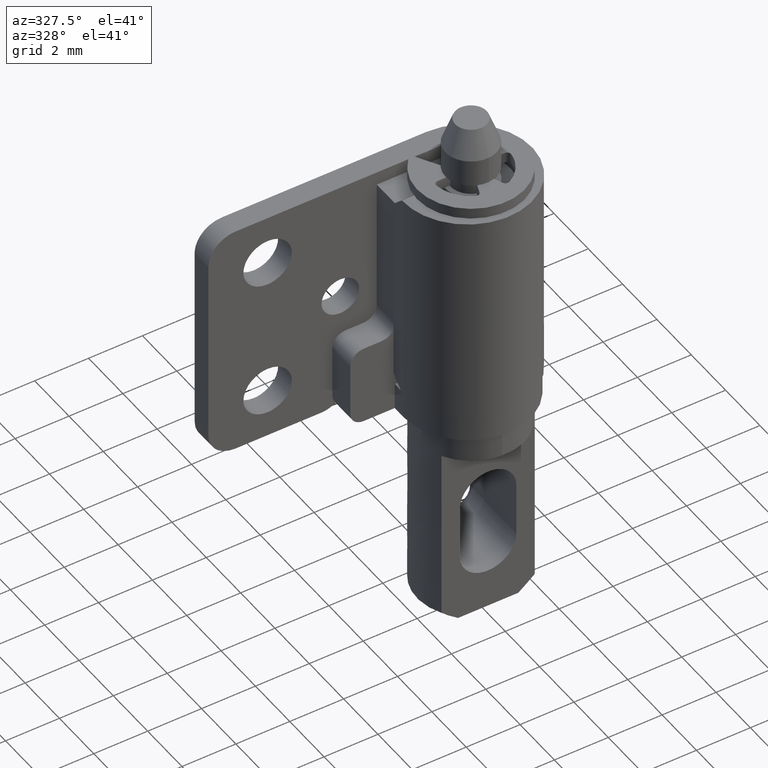
[diagram: clean part render]
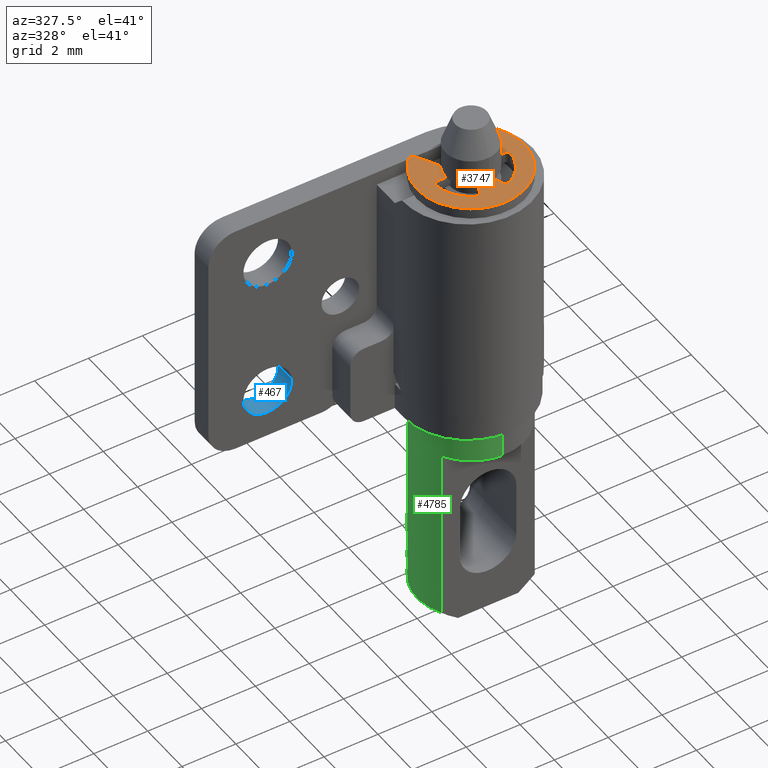
[diagram: same view with three faces highlighted in distinct colors, each labeled with its STEP entity id]
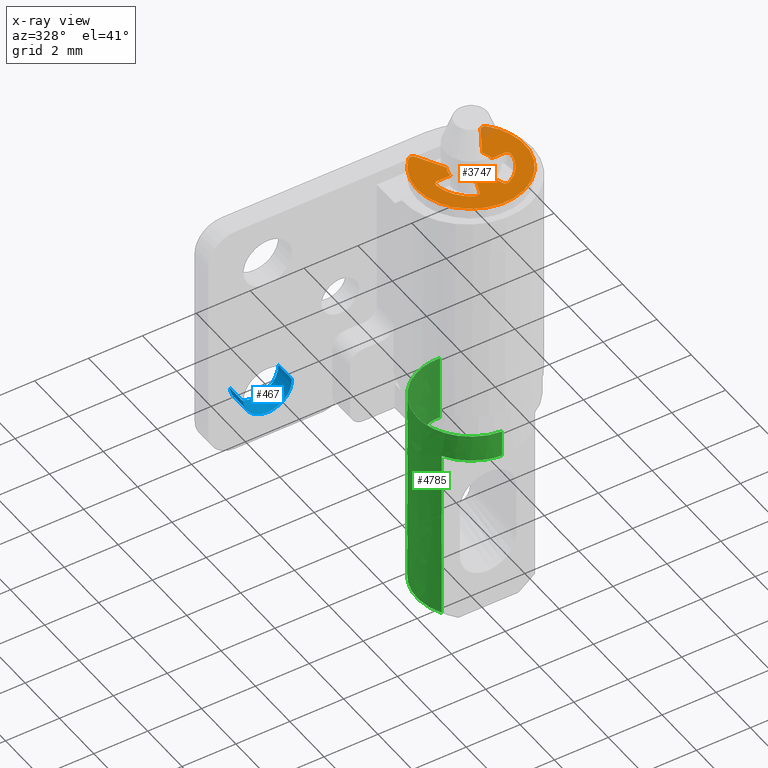
[diagram: x-ray of the same camera — body ghosted, the three highlighted faces saturated]
A machine part, auxiliary view with three faces highlighted in distinct colors.
The next image is the same camera in x-ray (body ghosted, the three faces saturated) — at least one of them is partly hidden behind the body in this view.
Their STEP definitions:

[orange] entity #3747 — the highlighted face is a freeform B-spline surface patch.
#3181=CARTESIAN_POINT('',(1.212330951790364,1.348148303648742,17.449999999999999));
#3182=VERTEX_POINT('',#3181);
#3188=CARTESIAN_POINT('',(1.451064492092410,1.376376343806188,17.449999999999999));
#3189=VERTEX_POINT('',#3188);
#3190=CARTESIAN_POINT('',(1.451064492092410,1.376376343806188,17.449999999999999));
#3191=CARTESIAN_POINT('',(1.440076014585856,1.387973529091939,17.450000000000010));
#3192=CARTESIAN_POINT('',(1.416683869878006,1.405810309640308,17.449999999999971));
#3193=CARTESIAN_POINT('',(1.368730980572497,1.423979063604677,17.450000000000031));
#3194=CARTESIAN_POINT('',(1.316700897225951,1.424645744408689,17.449999999999971));
#3195=CARTESIAN_POINT('',(1.256219339714265,1.401560849075707,17.450000000000021));
#3196=CARTESIAN_POINT('',(1.225351485501705,1.370835223705420,17.449999999999971));
#3197=CARTESIAN_POINT('',(1.212330951790364,1.348148303648742,17.449999999999999));
#3198=B_SPLINE_CURVE_WITH_KNOTS('',3,(#3190,#3191,#3192,#3193,#3194,#3195,#3196,#3197),.UNSPECIFIED.,.F.,.U.,(4,1,1,1,1,4),(0.000000065053776,0.047928601189015,0.087145310106098,0.152501182822709,0.200430249255266,0.278860340446040),.UNSPECIFIED.);
#3199=EDGE_CURVE('',#3189,#3182,#3198,.T.);
#3269=CARTESIAN_POINT('',(-1.451064492092310,1.376376343806042,17.449999999999999));
#3270=VERTEX_POINT('',#3269);
#3271=CARTESIAN_POINT('',(-1.451064492092310,1.376376343806042,17.449999999999999));
#3272=CARTESIAN_POINT('',(-1.522046137013473,1.301549995588683,17.450000000000038));
#3273=CARTESIAN_POINT('',(-1.660071863356793,1.131428898268059,17.449999999999921));
#3274=CARTESIAN_POINT('',(-1.807779447462006,0.872151483314480,17.450000000000099));
#3275=CARTESIAN_POINT('',(-1.922716487930998,0.577741336977017,17.449999999999839));
#3276=CARTESIAN_POINT('',(-1.995180773226926,0.256837143443216,17.450000000000230));
#3277=CARTESIAN_POINT('',(-2.007496212744952,-0.090357520048808,17.449999999999751));
#3278=CARTESIAN_POINT('',(-1.957537493965562,-0.464202748995445,17.450000000000220));
#3279=CARTESIAN_POINT('',(-1.838644848129679,-0.823645552632025,17.449999999999530));
#3280=CARTESIAN_POINT('',(-1.620343672876564,-1.197293584824139,17.450000000000522));
#3281=CARTESIAN_POINT('',(-1.349159400330162,-1.495433438029111,17.449999999999321));
#3282=CARTESIAN_POINT('',(-1.063198550029685,-1.703003623337727,17.450000000000038));
#3283=CARTESIAN_POINT('',(-0.750168126347550,-1.865116409745446,17.450000000000198));
#3284=CARTESIAN_POINT('',(-0.441453281232786,-1.962264716586985,17.449999999999878));
#3285=CARTESIAN_POINT('',(-0.097421700572246,-2.004721278102037,17.450000000000021));
#3286=CARTESIAN_POINT('',(0.188514587240929,-1.998217840306377,17.449999999999999));
#3287=CARTESIAN_POINT('',(0.470295166581990,-1.950320828831654,17.449999999999999));
#3288=CARTESIAN_POINT('',(0.719733686755420,-1.871823539655544,17.449999999999982));
#3289=CARTESIAN_POINT('',(0.957036953926355,-1.762334017535498,17.450000000000081));
#3290=CARTESIAN_POINT('',(1.194091960529090,-1.613818253410757,17.449999999999690));
#3291=CARTESIAN_POINT('',(1.401858094306371,-1.435289078391304,17.450000000000401));
#3292=CARTESIAN_POINT('',(1.599167714100959,-1.212324546987187,17.450000000000848));
#3293=CARTESIAN_POINT('',(1.763545977774109,-0.963277127498213,17.449999999999470));
#3294=CARTESIAN_POINT('',(1.893628905062764,-0.668022652771922,17.450000000000269));
#3295=CARTESIAN_POINT('',(1.970342083164480,-0.379980380282047,17.449999999999989));
#3296=CARTESIAN_POINT('',(2.004338507340568,-0.096186296834941,17.449999999999982));
#3297=CARTESIAN_POINT('',(1.997444666284665,0.220069844924971,17.449999999999971));
#3298=CARTESIAN_POINT('',(1.939834302730225,0.519320809507830,17.450000000000149));
#3299=CARTESIAN_POINT('',(1.841180675921866,0.793870112983513,17.449999999999761));
#3300=CARTESIAN_POINT('',(1.698646136168476,1.076047871860290,17.450000000000351));
#3301=CARTESIAN_POINT('',(1.555473523502966,1.266349790627703,17.449999999999900));
#3302=CARTESIAN_POINT('',(1.451064492092410,1.376376343806188,17.449999999999999));
#3303=B_SPLINE_CURVE_WITH_KNOTS('',3,(#3271,#3272,#3273,#3274,#3275,#3276,#3277,#3278,#3279,#3280,#3281,#3282,#3283,#3284,#3285,#3286,#3287,#3288,#3289,#3290,#3291,#3292,#3293,#3294,#3295,#3296,#3297,#3298,#3299,#3300,#3301,#3302),.UNSPECIFIED.,.F.,.U.,(4,1,1,1,1,1,1,1,1,1,1,1,1,1,1,1,1,1,1,1,1,1,1,1,1,1,1,1,1,4),(0.000000050985452,0.309413772538221,0.655252304163838,0.891868103643823,1.255901517056193,1.638137361888803,1.929362548048371,2.384400183111099,2.766630332795879,3.221663706624588,3.585687251890569,3.822315624208865,4.277353517664634,4.550376568086528,4.859805633774358,5.132828299039727,5.405851076440694,5.642477920777859,5.915493148931501,6.243106503253237,6.461532414230283,6.807355965644268,7.134985309013650,7.426214521909680,7.699238055508743,7.990463769543777,8.372694848878712,8.609322417356243,8.864139370618620,9.319172848517413),.UNSPECIFIED.);
#3304=EDGE_CURVE('',#3270,#3189,#3303,.T.);
#3342=CARTESIAN_POINT('',(-1.212330951790364,1.348148303648684,17.449999999999999));
#3343=VERTEX_POINT('',#3342);
#3344=CARTESIAN_POINT('',(-1.212330951790364,1.348148303648684,17.449999999999999));
#3345=CARTESIAN_POINT('',(-1.225357998960994,1.370831495464770,17.449999999999999));
#3346=CARTESIAN_POINT('',(-1.254085671713346,1.399446532416095,17.450000000000010));
#3347=CARTESIAN_POINT('',(-1.301454297067903,1.419087033525763,17.450000000000010));
#3348=CARTESIAN_POINT('',(-1.341951075622627,1.425077942138687,17.450000000000021));
#3349=CARTESIAN_POINT('',(-1.395928711209951,1.418082790829322,17.449999999999928));
#3350=CARTESIAN_POINT('',(-1.433111870728118,1.395401085094020,17.450000000000120));
#3351=CARTESIAN_POINT('',(-1.451064492092310,1.376376343806042,17.449999999999999));
#3352=B_SPLINE_CURVE_WITH_KNOTS('',3,(#3344,#3345,#3346,#3347,#3348,#3349,#3350,#3351),.UNSPECIFIED.,.F.,.U.,(4,1,1,1,1,4),(0.000000065053645,0.078430913774434,0.117649862217741,0.152501182822664,0.200430249255227,0.278860340446034),.UNSPECIFIED.);
#3353=EDGE_CURVE('',#3343,#3270,#3352,.T.);
#3555=CARTESIAN_POINT('',(-2.199796393704201,-2.170986096395479,17.449999999999999));
#3556=CARTESIAN_POINT('',(2.199796522551249,-2.170986096395479,17.449999999999999));
#3557=CARTESIAN_POINT('',(-2.199796393704201,1.594131394019769,17.449999999999999));
#3558=CARTESIAN_POINT('',(2.199796522551249,1.594131394019769,17.449999999999999));
#3559=B_SPLINE_SURFACE_WITH_KNOTS('',1,1,((#3555,#3557),(#3556,#3558)),.UNSPECIFIED.,.F.,.F.,.U.,(2,2),(2,2),(0.0,4.399592916255450),(0.0,3.765117490415248),.UNSPECIFIED.);
#3560=ORIENTED_EDGE('',*,*,#3353,.T.);
#3561=ORIENTED_EDGE('',*,*,#3304,.T.);
#3562=ORIENTED_EDGE('',*,*,#3199,.T.);
#3563=CARTESIAN_POINT('',(0.658638394191508,0.389127826937154,17.449999999999999));
#3564=VERTEX_POINT('',#3563);
#3565=CARTESIAN_POINT('',(0.658638394191508,0.389127826937154,17.449999999999999));
#3566=CARTESIAN_POINT('',(1.212330951790364,1.348148303648742,17.449999999999999));
#3567=QUASI_UNIFORM_CURVE('',1,(#3565,#3566),.UNSPECIFIED.,.F.,.U.);
#3568=EDGE_CURVE('',#3564,#3182,#3567,.T.);
#3569=ORIENTED_EDGE('',*,*,#3568,.F.);
#3570=CARTESIAN_POINT('',(0.765000000000000,0.0,17.449999999999999));
#3571=VERTEX_POINT('',#3570);
#3572=CARTESIAN_POINT('',(0.765000000000000,0.0,17.449999999999999));
#3573=CARTESIAN_POINT('',(0.765000000000000,0.209099999565535,17.449999999999999));
#3574=CARTESIAN_POINT('',(0.658638394191508,0.389127826937154,17.449999999999999));
#3582=(BOUNDED_CURVE()B_SPLINE_CURVE(2,(#3572,#3573,#3574),.UNSPECIFIED.,.F.,.U.)CURVE()GEOMETRIC_REPRESENTATION_ITEM()QUASI_UNIFORM_CURVE()RATIONAL_B_SPLINE_CURVE((1.0,0.964615265576222,1.0))REPRESENTATION_ITEM(''));
#3583=EDGE_CURVE('',#3571,#3564,#3582,.T.);
#3584=ORIENTED_EDGE('',*,*,#3583,.F.);
#3585=CARTESIAN_POINT('',(1.240967364599072,-3.411160E-014,17.449999999999999));
#3586=VERTEX_POINT('',#3585);
#3587=CARTESIAN_POINT('',(1.240967364599072,-3.411160E-014,17.449999999999999));
#3588=CARTESIAN_POINT('',(0.765000000000000,0.0,17.449999999999999));
#3589=QUASI_UNIFORM_CURVE('',1,(#3587,#3588),.UNSPECIFIED.,.F.,.U.);
#3590=EDGE_CURVE('',#3586,#3571,#3589,.T.);
#3591=ORIENTED_EDGE('',*,*,#3590,.F.);
#3592=CARTESIAN_POINT('',(1.389883448350970,-0.168000000000046,17.449999999999999));
#3593=VERTEX_POINT('',#3592);
#3594=CARTESIAN_POINT('',(1.389883448350970,-0.168000000000046,17.449999999999999));
#3595=CARTESIAN_POINT('',(1.391631797441161,-0.153573358312229,17.450000000000010));
#3596=CARTESIAN_POINT('',(1.390859461479480,-0.122871693956319,17.449999999999950));
#3597=CARTESIAN_POINT('',(1.377461882757580,-0.083623312750478,17.450000000000060));
#3598=CARTESIAN_POINT('',(1.350736715367259,-0.043948285433734,17.449999999999928));
#3599=CARTESIAN_POINT('',(1.307003419874137,-0.009970251042560,17.450000000000060));
#3600=CARTESIAN_POINT('',(1.263431761933882,0.000031570632863,17.449999999999999));
#3601=CARTESIAN_POINT('',(1.240967364599072,-3.411160E-014,17.449999999999999));
#3602=B_SPLINE_CURVE_WITH_KNOTS('',3,(#3594,#3595,#3596,#3597,#3598,#3599,#3600,#3601),.UNSPECIFIED.,.F.,.U.,(4,1,1,1,1,4),(0.000000053282574,0.043597552984356,0.091166314021057,0.122878169408883,0.186288909565575,0.253670308778183),.UNSPECIFIED.);
#3603=EDGE_CURVE('',#3593,#3586,#3602,.T.);
#3604=ORIENTED_EDGE('',*,*,#3603,.F.);
#3605=CARTESIAN_POINT('',(0.633236496503034,-1.248603836089160,17.449999999999999));
#3606=VERTEX_POINT('',#3605);
#3607=CARTESIAN_POINT('',(0.633236496503034,-1.248603836089159,17.449999999999999));
#3608=CARTESIAN_POINT('',(1.300150041824686,-0.910374860089326,17.449999999999999));
#3609=CARTESIAN_POINT('',(1.389883448350971,-0.168000000000046,17.449999999999999));
#3617=(BOUNDED_CURVE()B_SPLINE_CURVE(2,(#3607,#3608,#3609),.UNSPECIFIED.,.F.,.U.)CURVE()GEOMETRIC_REPRESENTATION_ITEM()QUASI_UNIFORM_CURVE()RATIONAL_B_SPLINE_CURVE((1.0,0.882061935247949,1.0))REPRESENTATION_ITEM(''));
#3618=EDGE_CURVE('',#3606,#3593,#3617,.T.);
#3619=ORIENTED_EDGE('',*,*,#3618,.F.);
#3620=CARTESIAN_POINT('',(0.424435835902699,-1.166127875149896,17.449999999999999));
#3621=VERTEX_POINT('',#3620);
#3622=CARTESIAN_POINT('',(0.424435835902699,-1.166127875149896,17.449999999999999));
#3623=CARTESIAN_POINT('',(0.431196401047926,-1.184757670969150,17.449999999999999));
#3624=CARTESIAN_POINT('',(0.452951282519037,-1.220419848056633,17.449999999999989));
#3625=CARTESIAN_POINT('',(0.498210396908111,-1.252329538666330,17.450000000000010));
#3626=CARTESIAN_POINT('',(0.545744346510345,-1.265486174095402,17.449999999999999));
#3627=CARTESIAN_POINT('',(0.589800468939707,-1.265181421331287,17.449999999999971));
#3628=CARTESIAN_POINT('',(0.619099923364617,-1.255781893481892,17.450000000000038));
#3629=CARTESIAN_POINT('',(0.633236496503034,-1.248603836089160,17.449999999999999));
#3630=B_SPLINE_CURVE_WITH_KNOTS('',3,(#3622,#3623,#3624,#3625,#3626,#3627,#3628,#3629),.UNSPECIFIED.,.F.,.U.,(4,1,1,1,1,4),(0.000000053282629,0.059453724634352,0.122878169408893,0.162504235342812,0.206108143555292,0.253670308778178),.UNSPECIFIED.);
#3631=EDGE_CURVE('',#3621,#3606,#3630,.T.);
#3632=ORIENTED_EDGE('',*,*,#3631,.F.);
#3633=CARTESIAN_POINT('',(0.261645409644129,-0.718864854901223,17.449999999999999));
#3634=VERTEX_POINT('',#3633);
#3635=CARTESIAN_POINT('',(0.261645409644129,-0.718864854901223,17.449999999999999));
#3636=CARTESIAN_POINT('',(0.424435835902699,-1.166127875149896,17.449999999999999));
#3637=QUASI_UNIFORM_CURVE('',1,(#3635,#3636),.UNSPECIFIED.,.F.,.U.);
#3638=EDGE_CURVE('',#3634,#3621,#3637,.T.);
#3639=ORIENTED_EDGE('',*,*,#3638,.F.);
#3640=CARTESIAN_POINT('',(-0.006675888679132,-0.764970870367183,17.449999999999999));
#3641=VERTEX_POINT('',#3640);
#3642=CARTESIAN_POINT('',(-0.006675888679132,-0.764970870367195,17.450000000000003));
#3643=CARTESIAN_POINT('',(0.131653424748923,-0.766178068096258,17.450000000000003));
#3644=CARTESIAN_POINT('',(0.261645409644129,-0.718864854901223,17.449999999999999));
#3652=(BOUNDED_CURVE()B_SPLINE_CURVE(2,(#3642,#3643,#3644),.UNSPECIFIED.,.F.,.U.)B_SPLINE_CURVE_WITH_KNOTS((3,3),(0.487626938908110,1.0),.UNSPECIFIED.)CURVE()GEOMETRIC_REPRESENTATION_ITEM()RATIONAL_B_SPLINE_CURVE((0.969864775624841,0.969100123505648,1.0))REPRESENTATION_ITEM(''));
#3653=EDGE_CURVE('',#3641,#3634,#3652,.T.);
#3654=ORIENTED_EDGE('',*,*,#3653,.F.);
#3655=CARTESIAN_POINT('',(-0.261645409644137,-0.718864854901220,17.449999999999999));
#3656=VERTEX_POINT('',#3655);
#3657=CARTESIAN_POINT('',(-0.261645409644136,-0.718864854901220,17.449999999999999));
#3658=CARTESIAN_POINT('',(-0.138121878992126,-0.763823743290021,17.450000000000003));
#3659=CARTESIAN_POINT('',(-0.006675888679132,-0.764970870367195,17.450000000000003));
#3667=(BOUNDED_CURVE()B_SPLINE_CURVE(2,(#3657,#3658,#3659),.UNSPECIFIED.,.F.,.U.)B_SPLINE_CURVE_WITH_KNOTS((3,3),(0.0,0.487626938908110),.UNSPECIFIED.)CURVE()GEOMETRIC_REPRESENTATION_ITEM()RATIONAL_B_SPLINE_CURVE((1.0,0.970592497280263,0.969864775624841))REPRESENTATION_ITEM(''));
#3668=EDGE_CURVE('',#3656,#3641,#3667,.T.);
#3669=ORIENTED_EDGE('',*,*,#3668,.F.);
#3670=CARTESIAN_POINT('',(-0.424435835902636,-1.166127875149890,17.449999999999999));
#3671=VERTEX_POINT('',#3670);
#3672=CARTESIAN_POINT('',(-0.424435835902636,-1.166127875149890,17.449999999999999));
#3673=CARTESIAN_POINT('',(-0.261645409644137,-0.718864854901220,17.449999999999999));
#3674=QUASI_UNIFORM_CURVE('',1,(#3672,#3673),.UNSPECIFIED.,.F.,.U.);
#3675=EDGE_CURVE('',#3671,#3656,#3674,.T.);
#3676=ORIENTED_EDGE('',*,*,#3675,.F.);
#3677=CARTESIAN_POINT('',(-0.633236496503001,-1.248603836089174,17.449999999999999));
#3678=VERTEX_POINT('',#3677);
#3679=CARTESIAN_POINT('',(-0.633236496503001,-1.248603836089174,17.449999999999999));
#3680=CARTESIAN_POINT('',(-0.609685488505143,-1.260630613189447,17.450000000000010));
#3681=CARTESIAN_POINT('',(-0.572191296190642,-1.268311763008696,17.449999999999971));
#3682=CARTESIAN_POINT('',(-0.518450418293170,-1.259366914210877,17.450000000000038));
#3683=CARTESIAN_POINT('',(-0.479676487588918,-1.241009788319723,17.449999999999989));
#3684=CARTESIAN_POINT('',(-0.444819939508049,-1.207912467802605,17.450000000000010));
#3685=CARTESIAN_POINT('',(-0.429850090945664,-1.181029688263391,17.450000000000010));
#3686=CARTESIAN_POINT('',(-0.424435835902636,-1.166127875149890,17.449999999999999));
#3687=B_SPLINE_CURVE_WITH_KNOTS('',3,(#3679,#3680,#3681,#3682,#3683,#3684,#3685,#3686),.UNSPECIFIED.,.F.,.U.,(4,1,1,1,1,4),(0.000000053282478,0.079273593675409,0.110986469966972,0.162504235342799,0.206108143555291,0.253670308778186),.UNSPECIFIED.);
#3688=EDGE_CURVE('',#3678,#3671,#3687,.T.);
#3689=ORIENTED_EDGE('',*,*,#3688,.F.);
#3690=CARTESIAN_POINT('',(-1.389883448350990,-0.168000000000007,17.449999999999999));
#3691=VERTEX_POINT('',#3690);
#3692=CARTESIAN_POINT('',(-1.389883448350975,-0.168000000000005,17.449999999999999));
#3693=CARTESIAN_POINT('',(-1.300150041824706,-0.910374860089336,17.450000000000003));
#3694=CARTESIAN_POINT('',(-0.633236496503002,-1.248603836089175,17.449999999999999));
#3702=(BOUNDED_CURVE()B_SPLINE_CURVE(2,(#3692,#3693,#3694),.UNSPECIFIED.,.F.,.U.)CURVE()GEOMETRIC_REPRESENTATION_ITEM()QUASI_UNIFORM_CURVE()RATIONAL_B_SPLINE_CURVE((1.0,0.882061935247936,1.0))REPRESENTATION_ITEM(''));
#3703=EDGE_CURVE('',#3691,#3678,#3702,.T.);
#3704=ORIENTED_EDGE('',*,*,#3703,.F.);
#3705=CARTESIAN_POINT('',(-1.240967364599100,0.0,17.449999999999999));
#3706=VERTEX_POINT('',#3705);
#3707=CARTESIAN_POINT('',(-1.240967364599100,0.0,17.449999999999999));
#3708=CARTESIAN_POINT('',(-1.267409923550458,0.000074045855941,17.449999999999989));
#3709=CARTESIAN_POINT('',(-1.308286349042970,-0.011116078452230,17.450000000000038));
#3710=CARTESIAN_POINT('',(-1.351059639021665,-0.045288249566572,17.449999999999950));
#3711=CARTESIAN_POINT('',(-1.377378342745237,-0.082176115168794,17.450000000000060));
#3712=CARTESIAN_POINT('',(-1.391111801216193,-0.124230024341015,17.449999999999999));
#3713=CARTESIAN_POINT('',(-1.391471277426256,-0.154884494982510,17.449999999999999));
#3714=CARTESIAN_POINT('',(-1.389883448350990,-0.168000000000007,17.449999999999999));
#3715=B_SPLINE_CURVE_WITH_KNOTS('',3,(#3707,#3708,#3709,#3710,#3711,#3712,#3713,#3714),.UNSPECIFIED.,.F.,.U.,(4,1,1,1,1,4),(0.000000053282651,0.079273593675493,0.122878169408903,0.162504235342818,0.214034598407028,0.253670308778173),.UNSPECIFIED.);
#3716=EDGE_CURVE('',#3706,#3691,#3715,.T.);
#3717=ORIENTED_EDGE('',*,*,#3716,.F.);
#3718=CARTESIAN_POINT('',(-0.765000000000000,9.368239E-017,17.449999999999999));
#3719=VERTEX_POINT('',#3718);
#3720=CARTESIAN_POINT('',(-0.765000000000000,9.368239E-017,17.449999999999999));
#3721=CARTESIAN_POINT('',(-1.240967364599100,0.0,17.449999999999999));
#3722=QUASI_UNIFORM_CURVE('',1,(#3720,#3721),.UNSPECIFIED.,.F.,.U.);
#3723=EDGE_CURVE('',#3719,#3706,#3722,.T.);
#3724=ORIENTED_EDGE('',*,*,#3723,.F.);
#3725=CARTESIAN_POINT('',(-0.658638394191504,0.389127826937161,17.449999999999999));
#3726=VERTEX_POINT('',#3725);
#3727=CARTESIAN_POINT('',(-0.658638394191504,0.389127826937161,17.449999999999999));
#3728=CARTESIAN_POINT('',(-0.765000000000000,0.209099999565539,17.449999999999996));
#3729=CARTESIAN_POINT('',(-0.765000000000000,0.0,17.449999999999999));
#3737=(BOUNDED_CURVE()B_SPLINE_CURVE(2,(#3727,#3728,#3729),.UNSPECIFIED.,.F.,.U.)CURVE()GEOMETRIC_REPRESENTATION_ITEM()QUASI_UNIFORM_CURVE()RATIONAL_B_SPLINE_CURVE((1.0,0.964615265576220,1.0))REPRESENTATION_ITEM(''));
#3738=EDGE_CURVE('',#3726,#3719,#3737,.T.);
#3739=ORIENTED_EDGE('',*,*,#3738,.F.);
#3740=CARTESIAN_POINT('',(-1.212330951790364,1.348148303648684,17.449999999999999));
#3741=CARTESIAN_POINT('',(-0.658638394191504,0.389127826937161,17.449999999999999));
#3742=QUASI_UNIFORM_CURVE('',1,(#3740,#3741),.UNSPECIFIED.,.F.,.U.);
#3743=EDGE_CURVE('',#3343,#3726,#3742,.T.);
#3744=ORIENTED_EDGE('',*,*,#3743,.F.);
#3745=EDGE_LOOP('',(#3560,#3561,#3562,#3569,#3584,#3591,#3604,#3619,#3632,#3639,#3654,#3669,#3676,#3689,#3704,#3717,#3724,#3739,#3744));
#3746=FACE_OUTER_BOUND('',#3745,.T.);
#3747=ADVANCED_FACE('',(#3746),#3559,.T.);

[blue] entity #467 — the highlighted face is a freeform B-spline surface patch.
#369=CARTESIAN_POINT('',(-5.501678681420320,1.780000000000024,9.904943685580902));
#370=CARTESIAN_POINT('',(-5.446734995838949,1.780000000000025,9.006622367001222));
#371=CARTESIAN_POINT('',(-6.345056314418629,1.780000000000024,8.951678681419852));
#372=CARTESIAN_POINT('',(-7.243377632998310,1.780000000000025,8.896734995838481));
#373=CARTESIAN_POINT('',(-7.298321318579681,1.780000000000024,9.795056314418160));
#374=CARTESIAN_POINT('',(-5.501678681420320,2.620500000000046,9.904943685580902));
#375=CARTESIAN_POINT('',(-5.446734995838949,2.620500000000047,9.006622367001222));
#376=CARTESIAN_POINT('',(-6.345056314418629,2.620500000000046,8.951678681419852));
#377=CARTESIAN_POINT('',(-7.243377632998310,2.620500000000047,8.896734995838481));
#378=CARTESIAN_POINT('',(-7.298321318579681,2.620500000000046,9.795056314418160));
#386=(BOUNDED_SURFACE()B_SPLINE_SURFACE(2,1,((#369,#374),(#370,#375),(#371,#376),(#372,#377),(#373,#378)),.UNSPECIFIED.,.F.,.F.,.U.)B_SPLINE_SURFACE_WITH_KNOTS((3,2,3),(2,2),(3.141592653589793,4.712388980384690,6.283185307179586),(0.0,1.0),.UNSPECIFIED.)GEOMETRIC_REPRESENTATION_ITEM()RATIONAL_B_SPLINE_SURFACE(((1.0,1.0),(0.707106781186548,0.707106781186548),(1.0,1.0),(0.707106781186548,0.707106781186548),(1.0,1.0)))REPRESENTATION_ITEM('')SURFACE());
#387=CARTESIAN_POINT('',(-5.501678681422691,1.800000000000025,9.904943685619653));
#388=VERTEX_POINT('',#387);
#389=CARTESIAN_POINT('',(-6.400000000000000,1.800000000000025,8.949999999999532));
#390=VERTEX_POINT('',#389);
#391=CARTESIAN_POINT('',(-5.501678681422691,1.800000000000024,9.904943685619651));
#392=CARTESIAN_POINT('',(-5.500000000000002,1.800000000000025,9.877497486987689));
#393=CARTESIAN_POINT('',(-5.500000000000001,1.800000000000025,9.849999999999531));
#394=CARTESIAN_POINT('',(-5.500000000000002,1.800000000000025,8.949999999999532));
#395=CARTESIAN_POINT('',(-6.400000000000000,1.800000000000025,8.949999999999532));
#403=(BOUNDED_CURVE()B_SPLINE_CURVE(2,(#391,#392,#393,#394,#395),.UNSPECIFIED.,.F.,.U.)B_SPLINE_CURVE_WITH_KNOTS((3,2,3),(0.239332962234525,0.250000000000000,0.500000000000000),.UNSPECIFIED.)CURVE()GEOMETRIC_REPRESENTATION_ITEM()RATIONAL_B_SPLINE_CURVE((0.976072041657250,0.987502787894662,1.0,0.707106781186547,1.0))REPRESENTATION_ITEM(''));
#404=EDGE_CURVE('',#388,#390,#403,.T.);
#405=ORIENTED_EDGE('',*,*,#404,.F.);
#406=CARTESIAN_POINT('',(-5.501678681422691,2.600000000000045,9.904943685619653));
#407=VERTEX_POINT('',#406);
#408=CARTESIAN_POINT('',(-5.501678681422691,1.800000000000025,9.904943685619653));
#409=CARTESIAN_POINT('',(-5.501678681422691,2.600000000000045,9.904943685619653));
#410=QUASI_UNIFORM_CURVE('',1,(#408,#409),.UNSPECIFIED.,.F.,.U.);
#411=EDGE_CURVE('',#388,#407,#410,.T.);
#412=ORIENTED_EDGE('',*,*,#411,.T.);
#413=CARTESIAN_POINT('',(-6.400000000000000,2.600000000000045,8.949999999999532));
#414=VERTEX_POINT('',#413);
#415=CARTESIAN_POINT('',(-5.501678681422692,2.600000000000045,9.904943685619651));
#416=CARTESIAN_POINT('',(-5.500000000000002,2.600000000000045,9.877497486987689));
#417=CARTESIAN_POINT('',(-5.500000000000001,2.600000000000045,9.849999999999531));
#418=CARTESIAN_POINT('',(-5.500000000000002,2.600000000000045,8.949999999999532));
#419=CARTESIAN_POINT('',(-6.400000000000000,2.600000000000045,8.949999999999532));
#427=(BOUNDED_CURVE()B_SPLINE_CURVE(2,(#415,#416,#417,#418,#419),.UNSPECIFIED.,.F.,.U.)B_SPLINE_CURVE_WITH_KNOTS((3,2,3),(0.239332962234525,0.250000000000000,0.500000000000000),.UNSPECIFIED.)CURVE()GEOMETRIC_REPRESENTATION_ITEM()RATIONAL_B_SPLINE_CURVE((0.976072041657250,0.987502787894662,1.0,0.707106781186547,1.0))REPRESENTATION_ITEM(''));
#428=EDGE_CURVE('',#407,#414,#427,.T.);
#429=ORIENTED_EDGE('',*,*,#428,.T.);
#430=CARTESIAN_POINT('',(-7.298321318577310,2.600000000000045,9.795056314379407));
#431=VERTEX_POINT('',#430);
#432=CARTESIAN_POINT('',(-6.400000000000000,2.600000000000045,8.949999999999532));
#433=CARTESIAN_POINT('',(-7.246635460178531,2.600000000000046,8.949999999999532));
#434=CARTESIAN_POINT('',(-7.298321318577311,2.600000000000045,9.795056314379405));
#442=(BOUNDED_CURVE()B_SPLINE_CURVE(2,(#432,#433,#434),.UNSPECIFIED.,.F.,.U.)B_SPLINE_CURVE_WITH_KNOTS((3,3),(0.500000000000000,0.739332962234524),.UNSPECIFIED.)CURVE()GEOMETRIC_REPRESENTATION_ITEM()RATIONAL_B_SPLINE_CURVE((1.0,0.719603993291887,0.976072041657248))REPRESENTATION_ITEM(''));
#443=EDGE_CURVE('',#414,#431,#442,.T.);
#444=ORIENTED_EDGE('',*,*,#443,.T.);
#445=CARTESIAN_POINT('',(-7.298321318577310,1.800000000000025,9.795056314379409));
#446=VERTEX_POINT('',#445);
#447=CARTESIAN_POINT('',(-7.298321318577310,1.800000000000025,9.795056314379409));
#448=CARTESIAN_POINT('',(-7.298321318577310,2.600000000000045,9.795056314379407));
#449=QUASI_UNIFORM_CURVE('',1,(#447,#448),.UNSPECIFIED.,.F.,.U.);
#450=EDGE_CURVE('',#446,#431,#449,.T.);
#451=ORIENTED_EDGE('',*,*,#450,.F.);
#452=CARTESIAN_POINT('',(-6.400000000000000,1.800000000000025,8.949999999999532));
#453=CARTESIAN_POINT('',(-7.246635460178534,1.800000000000024,8.949999999999532));
#454=CARTESIAN_POINT('',(-7.298321318577311,1.800000000000025,9.795056314379409));
#462=(BOUNDED_CURVE()B_SPLINE_CURVE(2,(#452,#453,#454),.UNSPECIFIED.,.F.,.U.)B_SPLINE_CURVE_WITH_KNOTS((3,3),(0.500000000000000,0.739332962234525),.UNSPECIFIED.)CURVE()GEOMETRIC_REPRESENTATION_ITEM()RATIONAL_B_SPLINE_CURVE((1.0,0.719603993291886,0.976072041657250))REPRESENTATION_ITEM(''));
#463=EDGE_CURVE('',#390,#446,#462,.T.);
#464=ORIENTED_EDGE('',*,*,#463,.F.);
#465=EDGE_LOOP('',(#405,#412,#429,#444,#451,#464));
#466=FACE_OUTER_BOUND('',#465,.T.);
#467=ADVANCED_FACE('',(#466),#386,.F.);

[green] entity #4785 — the highlighted face is a freeform B-spline surface patch.
#4431=CARTESIAN_POINT('',(-0.122097079087866,-1.996269596842623,8.0));
#4432=VERTEX_POINT('',#4431);
#4433=CARTESIAN_POINT('',(-2.0,0.0,8.0));
#4434=VERTEX_POINT('',#4433);
#4435=CARTESIAN_POINT('',(-0.122097079087866,-1.996269596842624,8.000000000000002));
#4436=CARTESIAN_POINT('',(-2.000000000000000,-1.881412133794251,8.0));
#4437=CARTESIAN_POINT('',(-2.0,0.0,8.0));
#4445=(BOUNDED_CURVE()B_SPLINE_CURVE(2,(#4435,#4436,#4437),.UNSPECIFIED.,.F.,.U.)B_SPLINE_CURVE_WITH_KNOTS((3,3),(0.760667037759601,1.0),.UNSPECIFIED.)CURVE()GEOMETRIC_REPRESENTATION_ITEM()RATIONAL_B_SPLINE_CURVE((0.976072041669839,0.719603993285004,1.0))REPRESENTATION_ITEM(''));
#4446=EDGE_CURVE('',#4432,#4434,#4445,.T.);
#4465=CARTESIAN_POINT('',(0.122097079087709,1.996269596842633,8.0));
#4466=VERTEX_POINT('',#4465);
#4480=CARTESIAN_POINT('',(-2.0,0.0,8.0));
#4481=CARTESIAN_POINT('',(-2.000000000000000,2.000000000000000,8.0));
#4482=CARTESIAN_POINT('',(0.0,2.0,8.0));
#4483=CARTESIAN_POINT('',(0.061105526606201,2.0,8.0));
#4484=CARTESIAN_POINT('',(0.122097079087710,1.996269596842633,8.0));
#4492=(BOUNDED_CURVE()B_SPLINE_CURVE(2,(#4480,#4481,#4482,#4483,#4484),.UNSPECIFIED.,.F.,.U.)B_SPLINE_CURVE_WITH_KNOTS((3,2,3),(0.0,0.250000000000000,0.260667037759587),.UNSPECIFIED.)CURVE()GEOMETRIC_REPRESENTATION_ITEM()RATIONAL_B_SPLINE_CURVE((1.0,0.707106781186548,1.0,0.987502787901560,0.976072041669868))REPRESENTATION_ITEM(''));
#4493=EDGE_CURVE('',#4434,#4466,#4492,.T.);
#4524=CARTESIAN_POINT('',(-0.122096884365076,-1.996269608752360,6.999999999998314));
#4525=VERTEX_POINT('',#4524);
#4526=CARTESIAN_POINT('',(-0.122097079087866,-1.996269596842623,8.0));
#4527=CARTESIAN_POINT('',(-0.122096884365076,-1.996269608752360,6.999999999998314));
#4528=QUASI_UNIFORM_CURVE('',1,(#4526,#4527),.UNSPECIFIED.,.F.,.U.);
#4529=EDGE_CURVE('',#4432,#4525,#4528,.T.);
#4555=CARTESIAN_POINT('',(0.122097689102757,1.996269559532312,0.499999999999943));
#4556=VERTEX_POINT('',#4555);
#4572=CARTESIAN_POINT('',(0.122097138440209,1.996270568311128,1.457110530704186));
#4573=VERTEX_POINT('',#4572);
#4574=CARTESIAN_POINT('',(0.122097138440209,1.996270568311128,1.457110530704186));
#4575=CARTESIAN_POINT('',(0.122097689102757,1.996269559532312,0.499999999999943));
#4576=QUASI_UNIFORM_CURVE('',1,(#4574,#4575),.UNSPECIFIED.,.F.,.U.);
#4577=EDGE_CURVE('',#4573,#4556,#4576,.T.);
#4616=CARTESIAN_POINT('',(0.122097770387292,1.996269589418099,5.542874066149091));
#4617=VERTEX_POINT('',#4616);
#4644=CARTESIAN_POINT('',(0.122097079087709,1.996269596842633,8.0));
#4645=CARTESIAN_POINT('',(0.122097770387292,1.996269589418099,5.542874066149091));
#4646=QUASI_UNIFORM_CURVE('',1,(#4644,#4645),.UNSPECIFIED.,.F.,.U.);
#4647=EDGE_CURVE('',#4466,#4617,#4646,.T.);
#4652=CARTESIAN_POINT('',(-0.122097079069711,-1.996269596843733,8.187500000000002));
#4653=CARTESIAN_POINT('',(-2.118366675913444,-1.874172517774023,8.187500000000002));
#4654=CARTESIAN_POINT('',(-1.996269596843733,0.122097079069711,8.187500000000002));
#4655=CARTESIAN_POINT('',(-1.874172517774023,2.118366675913444,8.187500000000002));
#4656=CARTESIAN_POINT('',(0.122097079069711,1.996269596843733,8.187500000000002));
#4657=CARTESIAN_POINT('',(-0.122097079069711,-1.996269596843733,0.307812499999941));
#4658=CARTESIAN_POINT('',(-2.118366675913444,-1.874172517774023,0.307812499999941));
#4659=CARTESIAN_POINT('',(-1.996269596843733,0.122097079069711,0.307812499999941));
#4660=CARTESIAN_POINT('',(-1.874172517774023,2.118366675913444,0.307812499999941));
#4661=CARTESIAN_POINT('',(0.122097079069711,1.996269596843733,0.307812499999941));
#4669=(BOUNDED_SURFACE()B_SPLINE_SURFACE(2,1,((#4652,#4657),(#4653,#4658),(#4654,#4659),(#4655,#4660),(#4656,#4661)),.UNSPECIFIED.,.F.,.F.,.U.)B_SPLINE_SURFACE_WITH_KNOTS((3,2,3),(2,2),(0.0,3.313708498984759,6.627416997969518),(0.0,7.879687500000062),.UNSPECIFIED.)GEOMETRIC_REPRESENTATION_ITEM()RATIONAL_B_SPLINE_SURFACE(((1.0,1.0),(0.707106781186548,0.707106781186548),(1.0,1.0),(0.707106781186548,0.707106781186548),(1.0,1.0)))REPRESENTATION_ITEM('')SURFACE());
#4670=ORIENTED_EDGE('',*,*,#4493,.T.);
#4671=ORIENTED_EDGE('',*,*,#4647,.T.);
#4672=CARTESIAN_POINT('',(-1.049999999999968,1.702204453054925,4.500000000000309));
#4673=VERTEX_POINT('',#4672);
#4674=CARTESIAN_POINT('',(-1.049999999999968,1.702204453054925,4.500000000000309));
#4675=CARTESIAN_POINT('',(-1.050000010374826,1.702204452679260,4.570809596214084));
#4676=CARTESIAN_POINT('',(-1.042914397916693,1.706629959993121,4.640104488696994));
#4677=CARTESIAN_POINT('',(-1.022327220651009,1.718985510925318,4.741964663068782));
#4678=CARTESIAN_POINT('',(-1.013791169381343,1.724055556256573,4.775568993927684));
#4679=CARTESIAN_POINT('',(-0.993321172369975,1.735930058511659,4.842087337117710));
#4680=CARTESIAN_POINT('',(-0.981491654901235,1.742671293049089,4.874626888388300));
#4681=CARTESIAN_POINT('',(-0.941770048918252,1.764648761112199,4.969312823794413));
#4682=CARTESIAN_POINT('',(-0.909565673157851,1.781703554296507,5.028979960022686));
#4683=CARTESIAN_POINT('',(-0.852653266992038,1.809261418191923,5.113709100859126));
#4684=CARTESIAN_POINT('',(-0.832321697789952,1.818732882060238,5.140995373984182));
#4685=CARTESIAN_POINT('',(-0.789504511250575,1.837724501186653,5.193048927250422));
#4686=CARTESIAN_POINT('',(-0.744383732182364,1.856838372083218,5.242810189489908));
#4687=CARTESIAN_POINT('',(-0.694612303605791,1.875708095361832,5.288135226325378));
#4688=CARTESIAN_POINT('',(-0.642412608458256,1.894220987808326,5.331233465254512));
#4689=CARTESIAN_POINT('',(-0.614952239990689,1.903340354179671,5.351755761658782));
#4690=CARTESIAN_POINT('',(-0.530332442692932,1.929308130181678,5.408774797980602));
#4691=CARTESIAN_POINT('',(-0.470694506483416,1.944889239823298,5.441075692652693));
#4692=CARTESIAN_POINT('',(-0.376123312844995,1.964578386120170,5.480916472394685));
#4693=CARTESIAN_POINT('',(-0.343741453192092,1.970527459426563,5.492750091757864));
#4694=CARTESIAN_POINT('',(-0.277134421713008,1.980992967344804,5.513364233749410));
#4695=CARTESIAN_POINT('',(-0.243123338432663,1.985463308852210,5.522054083633499));
#4696=CARTESIAN_POINT('',(-0.140921193036834,1.996205122557792,5.542818145127221));
#4697=CARTESIAN_POINT('',(-0.071812118957326,1.999939882242957,5.549882723227024));
#4698=CARTESIAN_POINT('',(0.033364606551861,2.000028964411535,5.550052257022911));
#4699=CARTESIAN_POINT('',(0.068887459181740,1.999119237431532,5.548322596792962));
#4700=CARTESIAN_POINT('',(0.109923738069442,1.996986240822765,5.544245193360535));
#4701=CARTESIAN_POINT('',(0.116017597953767,1.996641434514304,5.543585768711392));
#4702=CARTESIAN_POINT('',(0.122097770387292,1.996269589418099,5.542874066149091));
#4703=B_SPLINE_CURVE_WITH_KNOTS('',3,(#4674,#4675,#4676,#4677,#4678,#4679,#4680,#4681,#4682,#4683,#4684,#4685,#4686,#4687,#4688,#4689,#4690,#4691,#4692,#4693,#4694,#4695,#4696,#4697,#4698,#4699,#4700,#4701,#4702),.UNSPECIFIED.,.F.,.U.,(4,2,2,2,2,2,1,2,2,2,2,2,2,2,4),(0.0,0.062500000000000,0.093750000000000,0.125000000000000,0.187500000000000,0.218750000000000,0.250000000000000,0.281250000000000,0.312500000000000,0.375000000000000,0.406250000000000,0.437500000000000,0.500000000000000,0.531250000000000,0.536714389859508),.UNSPECIFIED.);
#4704=EDGE_CURVE('',#4673,#4617,#4703,.T.);
#4705=ORIENTED_EDGE('',*,*,#4704,.F.);
#4706=CARTESIAN_POINT('',(-1.049999999999982,1.702204453054915,2.500000000000315));
#4707=VERTEX_POINT('',#4706);
#4708=CARTESIAN_POINT('',(-1.049999999999968,1.702204453054925,4.500000000000309));
#4709=CARTESIAN_POINT('',(-1.049999999999982,1.702204453054915,2.500000000000315));
#4710=QUASI_UNIFORM_CURVE('',1,(#4708,#4709),.UNSPECIFIED.,.F.,.U.);
#4711=EDGE_CURVE('',#4673,#4707,#4710,.T.);
#4712=ORIENTED_EDGE('',*,*,#4711,.T.);
#4713=CARTESIAN_POINT('',(0.122097138440209,1.996270568311128,1.457110530704186));
#4714=CARTESIAN_POINT('',(0.082294324096909,1.998705518618217,1.452447488723573));
#4715=CARTESIAN_POINT('',(0.042162120059222,1.999964067821110,1.450066653809898));
#4716=CARTESIAN_POINT('',(-0.033365006485804,2.000028071628639,1.449944805866169));
#4717=CARTESIAN_POINT('',(-0.068887863654863,1.999118361514702,1.451674418712861));
#4718=CARTESIAN_POINT('',(-0.138745152379171,1.995487332581543,1.458615415976737));
#4719=CARTESIAN_POINT('',(-0.207701091476083,1.990067606391173,1.468994864806753));
#4720=CARTESIAN_POINT('',(-0.274922942179861,1.981298102216255,1.486036372490954));
#4721=CARTESIAN_POINT('',(-0.341288449204815,1.970950827065530,1.506406994186485));
#4722=CARTESIAN_POINT('',(-0.374204915336974,1.964949459311397,1.518336079381823));
#4723=CARTESIAN_POINT('',(-0.469775838495646,1.945132933233049,1.558414075007463));
#4724=CARTESIAN_POINT('',(-0.529700380984055,1.929481871842707,1.590854508347256));
#4725=CARTESIAN_POINT('',(-0.614364661826977,1.903529687560066,1.647818623343295));
#4726=CARTESIAN_POINT('',(-0.641831755086658,1.894418513927280,1.668312837974577));
#4727=CARTESIAN_POINT('',(-0.694192953431565,1.875864022472252,1.711490215328188));
#4728=CARTESIAN_POINT('',(-0.719131521053161,1.866414411064769,1.734180319513034));
#4729=CARTESIAN_POINT('',(-0.790396337234475,1.837903868401182,1.805526664195685));
#4730=CARTESIAN_POINT('',(-0.833212517056575,1.818666076785756,1.857414744935122));
#4731=CARTESIAN_POINT('',(-0.909392064951677,1.781795663733067,1.970693874062990));
#4732=CARTESIAN_POINT('',(-0.941542243375601,1.764767794267285,2.030291455493414));
#4733=CARTESIAN_POINT('',(-0.981095836397192,1.742893380500789,2.124356614310751));
#4734=CARTESIAN_POINT('',(-0.992823303561986,1.736214461105092,2.156497043223731));
#4735=CARTESIAN_POINT('',(-1.013246877116536,1.724375150418790,2.222469541690372));
#4736=CARTESIAN_POINT('',(-1.021979272369109,1.719192873504454,2.256517455233375));
#4737=CARTESIAN_POINT('',(-1.042900313161225,1.706640938595896,2.359428239672656));
#4738=CARTESIAN_POINT('',(-1.050000001723808,1.702204424875695,2.429132454962987));
#4739=CARTESIAN_POINT('',(-1.049999999999982,1.702204453054915,2.500000000000315));
#4740=B_SPLINE_CURVE_WITH_KNOTS('',3,(#4713,#4714,#4715,#4716,#4717,#4718,#4719,#4720,#4721,#4722,#4723,#4724,#4725,#4726,#4727,#4728,#4729,#4730,#4731,#4732,#4733,#4734,#4735,#4736,#4737,#4738,#4739),.UNSPECIFIED.,.F.,.U.,(4,2,2,1,2,2,2,2,2,2,2,2,2,4),(0.463928383885214,0.500000000000000,0.531250000000000,0.562500000000000,0.593750000000000,0.625000000000000,0.687499999999999,0.718750000000000,0.750000000000000,0.812500000000000,0.875000000000000,0.906250000000000,0.937500000000000,1.0),.UNSPECIFIED.);
#4741=EDGE_CURVE('',#4573,#4707,#4740,.T.);
#4742=ORIENTED_EDGE('',*,*,#4741,.F.);
#4743=ORIENTED_EDGE('',*,*,#4577,.T.);
#4744=CARTESIAN_POINT('',(-1.732050807568860,-1.0,0.499999999999943));
#4745=VERTEX_POINT('',#4744);
#4746=CARTESIAN_POINT('',(-1.732050807568860,-1.0,0.499999999999943));
#4747=CARTESIAN_POINT('',(-2.571150438746125,0.453363193811341,0.499999999999943));
#4748=CARTESIAN_POINT('',(-1.285575219373061,1.532088886237932,0.499999999999943));
#4749=CARTESIAN_POINT('',(-0.674333461575072,2.044981619766377,0.499999999999943));
#4750=CARTESIAN_POINT('',(0.122097689102761,1.996269559532391,0.499999999999943));
#4758=(BOUNDED_CURVE()B_SPLINE_CURVE(2,(#4746,#4747,#4748,#4749,#4750),.UNSPECIFIED.,.F.,.U.)B_SPLINE_CURVE_WITH_KNOTS((3,2,3),(0.0,0.333333333333333,0.513990574575450),.UNSPECIFIED.)CURVE()GEOMETRIC_REPRESENTATION_ITEM()RATIONAL_B_SPLINE_CURVE((1.0,0.766044443118977,1.0,0.873202703561834,0.883846505752535))REPRESENTATION_ITEM(''));
#4759=EDGE_CURVE('',#4745,#4556,#4758,.T.);
#4760=ORIENTED_EDGE('',*,*,#4759,.F.);
#4761=CARTESIAN_POINT('',(-1.732050807568885,-1.0,6.999999999998760));
#4762=VERTEX_POINT('',#4761);
#4763=CARTESIAN_POINT('',(-1.732050807568860,-1.0,0.499999999999943));
#4764=CARTESIAN_POINT('',(-1.732050807568885,-1.0,6.999999999998760));
#4765=QUASI_UNIFORM_CURVE('',1,(#4763,#4764),.UNSPECIFIED.,.F.,.U.);
#4766=EDGE_CURVE('',#4745,#4762,#4765,.T.);
#4767=ORIENTED_EDGE('',*,*,#4766,.T.);
#4768=CARTESIAN_POINT('',(-1.732050807568880,-0.999999999999996,6.999999999998766));
#4769=CARTESIAN_POINT('',(-1.194731362582694,-1.930664578610785,6.999999999998343));
#4770=CARTESIAN_POINT('',(-0.122096884365076,-1.996269608752371,6.999999999998313));
#4778=(BOUNDED_CURVE()B_SPLINE_CURVE(2,(#4768,#4769,#4770),.UNSPECIFIED.,.F.,.U.)B_SPLINE_CURVE_WITH_KNOTS((3,3),(0.0,0.469695376591678),.UNSPECIFIED.)CURVE()GEOMETRIC_REPRESENTATION_ITEM()RATIONAL_B_SPLINE_CURVE((1.0,0.874145503153627,0.984744107475307))REPRESENTATION_ITEM(''));
#4779=EDGE_CURVE('',#4762,#4525,#4778,.T.);
#4780=ORIENTED_EDGE('',*,*,#4779,.T.);
#4781=ORIENTED_EDGE('',*,*,#4529,.F.);
#4782=ORIENTED_EDGE('',*,*,#4446,.T.);
#4783=EDGE_LOOP('',(#4670,#4671,#4705,#4712,#4742,#4743,#4760,#4767,#4780,#4781,#4782));
#4784=FACE_OUTER_BOUND('',#4783,.T.);
#4785=ADVANCED_FACE('',(#4784),#4669,.T.);